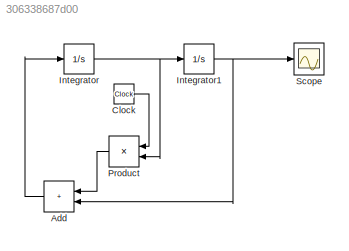
MODEL slx_306338687d00
KIND model
CONFIG AbsTol = auto
CONFIG EnableMultiTasking = off
CONFIG FixedStep = auto
CONFIG MaxStep = auto
CONFIG MinStep = auto
CONFIG RelTol = 1e-3
CONFIG SampleTimeConstraint = Unconstrained
CONFIG SolverName = VariableStepAuto
CONFIG StartTime = 0.0
CONFIG StopTime = 2
BLOCK [Sum] Add
  IconShape = rectangular
BLOCK [Clock] Clock
BLOCK [Integrator] Integrator
  InitialCondition = -1
BLOCK [Integrator] Integrator1
  InitialCondition = 1
BLOCK [Product] Product
BLOCK [Scope] Scope
  Floating = off
  NumInputPorts = 1
  ScopeSpecificationString = Simulink.scopes.TimeScopeBlockCfg('CurrentConfiguration', extmgr.ConfigurationSet(extmgr.Configuration('Core','General UI',true),extmgr.Configuration('Core','Source UI',true),extmgr.Configuration('Sources','WiredSimulink',true),extmgr.Configuration('Visuals','Time Domain',true,'SerializedDisplays',{struct('MinYLimReal','-1.75668','MaxYLimReal','1.3063','YLabelReal','','MinYLimMag','0.00000','MaxYL...<+1473ch>
LINE Add:1 -> Integrator:1
LINE Clock:1 -> Product:1
NET Integrator1:1 -> Add:2, Scope:1
NET Integrator:1 -> Integrator1:1, Product:2
LINE Product:1 -> Add:1
note: NET lines group one-source signal fan-out (src -> all destinations, sorted); 1:1 wires keep LINE
